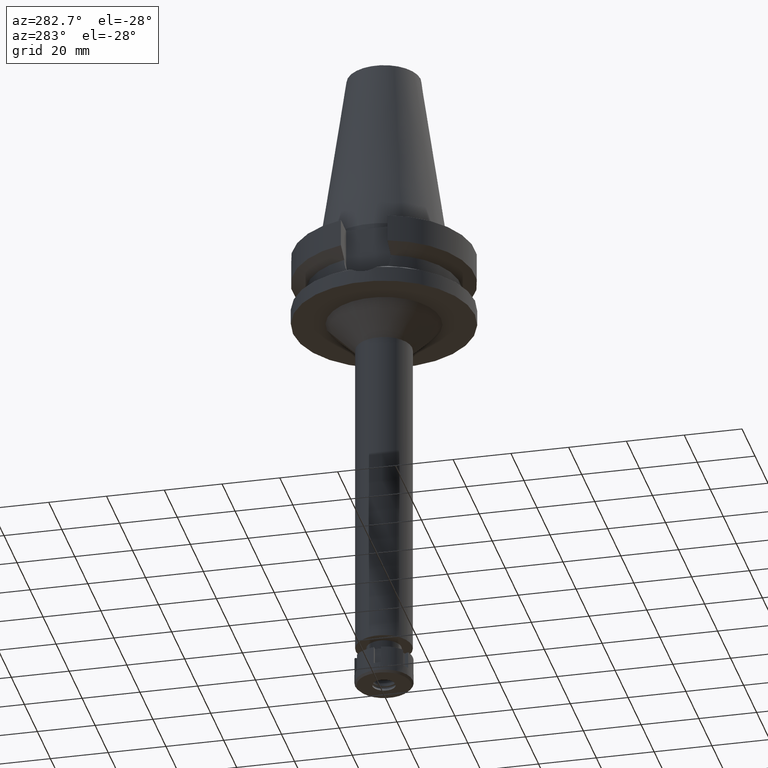
[diagram: clean part render]
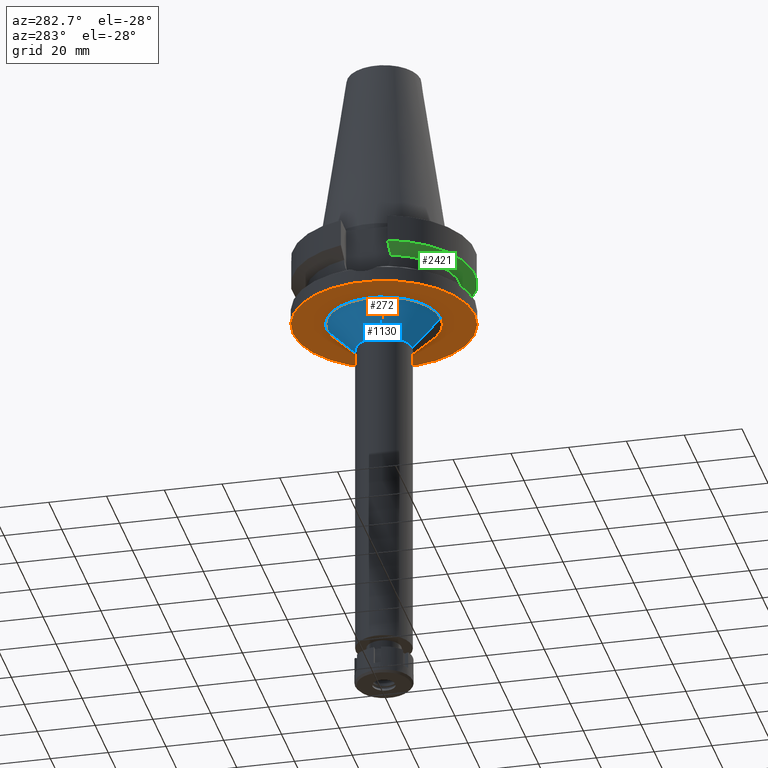
[diagram: same view with three faces highlighted in distinct colors, each labeled with its STEP entity id]
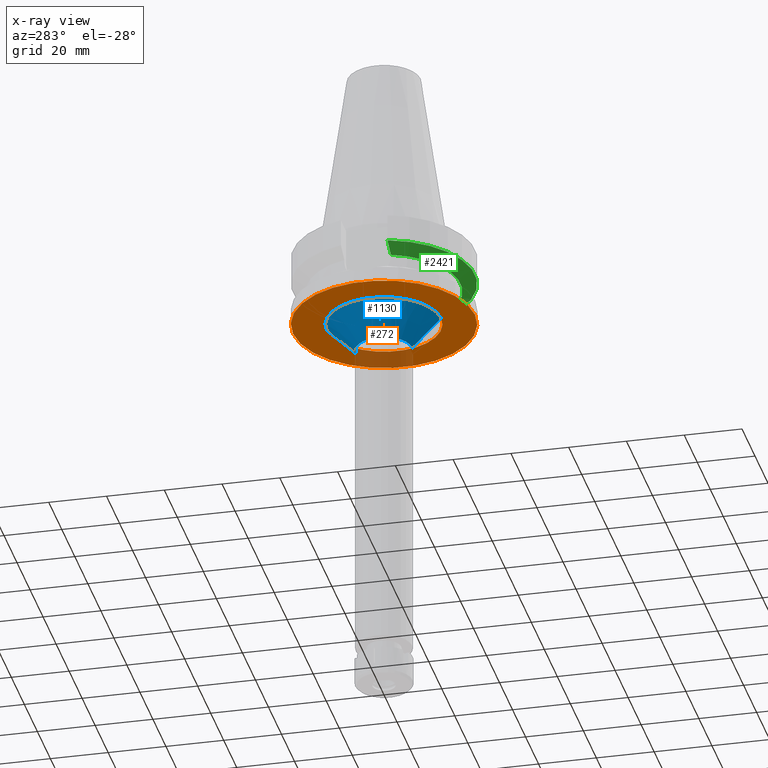
[diagram: x-ray of the same camera — body ghosted, the three highlighted faces saturated]
A machine part, auxiliary view with three faces highlighted in distinct colors.
The next image is the same camera in x-ray (body ghosted, the three faces saturated) — at least one of them is partly hidden behind the body in this view.
Their STEP definitions:

[orange] entity #272 — the highlighted planar face has unit normal (0, 0, -1).
#47 = DIRECTION ( 'NONE',  ( 0.0000000000000000000, 0.0000000000000000000, -1.000000000000000000 ) ) ;
#118 = CIRCLE ( 'NONE', #2706, 19.75000000000000000 ) ;
#255 = FACE_OUTER_BOUND ( 'NONE', #1610, .T. ) ;
#258 = CARTESIAN_POINT ( 'NONE',  ( 0.0000000000000000000, 0.0000000000000000000, -27.00000000000000000 ) ) ;
#272 = ADVANCED_FACE ( 'NONE', ( #255, #2242 ), #1097, .T. ) ;
#285 = ORIENTED_EDGE ( 'NONE', *, *, #2653, .F. ) ;
#293 = AXIS2_PLACEMENT_3D ( 'NONE', #521, #1375, #2842 ) ;
#336 = CARTESIAN_POINT ( 'NONE',  ( 0.0000000000000000000, 2.163583500053999606E-14, -27.00000000000000000 ) ) ;
#356 = VERTEX_POINT ( 'NONE', #3419 ) ;
#410 = AXIS2_PLACEMENT_3D ( 'NONE', #2341, #3465, #2101 ) ;
#521 = CARTESIAN_POINT ( 'NONE',  ( 0.0000000000000000000, 0.0000000000000000000, -27.00000000000000000 ) ) ;
#699 = EDGE_LOOP ( 'NONE', ( #285, #3612 ) ) ;
#718 = CARTESIAN_POINT ( 'NONE',  ( 0.0000000000000000000, -19.75000000000000000, -27.00000000000000000 ) ) ;
#792 = VERTEX_POINT ( 'NONE', #3442 ) ;
#944 = EDGE_CURVE ( 'NONE', #356, #792, #2880, .T. ) ;
#1085 = EDGE_CURVE ( 'NONE', #2205, #1089, #118, .T. ) ;
#1089 = VERTEX_POINT ( 'NONE', #2807 ) ;
#1097 = PLANE ( 'NONE',  #293 ) ;
#1127 = CARTESIAN_POINT ( 'NONE',  ( 0.0000000000000000000, 0.0000000000000000000, -27.00000000000000000 ) ) ;
#1173 = DIRECTION ( 'NONE',  ( 0.0000000000000000000, 0.0000000000000000000, 1.000000000000000000 ) ) ;
#1375 = DIRECTION ( 'NONE',  ( 0.0000000000000000000, 0.0000000000000000000, -1.000000000000000000 ) ) ;
#1610 = EDGE_LOOP ( 'NONE', ( #3085, #2800 ) ) ;
#1652 = CIRCLE ( 'NONE', #3347, 19.75000000000000000 ) ;
#1820 = AXIS2_PLACEMENT_3D ( 'NONE', #336, #1173, #3148 ) ;
#2101 = DIRECTION ( 'NONE',  ( 0.0000000000000000000, 1.000000000000000000, 0.0000000000000000000 ) ) ;
#2146 = EDGE_CURVE ( 'NONE', #792, #356, #3339, .T. ) ;
#2205 = VERTEX_POINT ( 'NONE', #718 ) ;
#2240 = DIRECTION ( 'NONE',  ( 0.0000000000000000000, 1.000000000000000000, 0.0000000000000000000 ) ) ;
#2242 = FACE_BOUND ( 'NONE', #699, .T. ) ;
#2341 = CARTESIAN_POINT ( 'NONE',  ( 0.0000000000000000000, 2.163583500053999606E-14, -27.00000000000000000 ) ) ;
#2653 = EDGE_CURVE ( 'NONE', #1089, #2205, #1652, .T. ) ;
#2706 = AXIS2_PLACEMENT_3D ( 'NONE', #258, #2831, #3620 ) ;
#2800 = ORIENTED_EDGE ( 'NONE', *, *, #2146, .F. ) ;
#2807 = CARTESIAN_POINT ( 'NONE',  ( 0.0000000000000000000, 19.75000000000000000, -27.00000000000000000 ) ) ;
#2831 = DIRECTION ( 'NONE',  ( 0.0000000000000000000, 0.0000000000000000000, -1.000000000000000000 ) ) ;
#2842 = DIRECTION ( 'NONE',  ( 0.0000000000000000000, -1.000000000000000000, 0.0000000000000000000 ) ) ;
#2880 = CIRCLE ( 'NONE', #410, 31.50000000000000000 ) ;
#3085 = ORIENTED_EDGE ( 'NONE', *, *, #944, .F. ) ;
#3148 = DIRECTION ( 'NONE',  ( 0.0000000000000000000, -1.000000000000000000, 0.0000000000000000000 ) ) ;
#3339 = CIRCLE ( 'NONE', #1820, 31.50000000000000000 ) ;
#3347 = AXIS2_PLACEMENT_3D ( 'NONE', #1127, #47, #2240 ) ;
#3419 = CARTESIAN_POINT ( 'NONE',  ( 0.0000000000000000000, 31.50000000000000000, -27.00000000000000000 ) ) ;
#3442 = CARTESIAN_POINT ( 'NONE',  ( 0.0000000000000000000, -31.50000000000000000, -27.00000000000000000 ) ) ;
#3465 = DIRECTION ( 'NONE',  ( 0.0000000000000000000, 0.0000000000000000000, 1.000000000000000000 ) ) ;
#3612 = ORIENTED_EDGE ( 'NONE', *, *, #1085, .F. ) ;
#3620 = DIRECTION ( 'NONE',  ( 0.0000000000000000000, -1.000000000000000000, 0.0000000000000000000 ) ) ;

[blue] entity #1130 — the highlighted conical surface has half-angle 45 deg.
#118 = CIRCLE ( 'NONE', #2706, 19.75000000000000000 ) ;
#258 = CARTESIAN_POINT ( 'NONE',  ( 0.0000000000000000000, 0.0000000000000000000, -27.00000000000000000 ) ) ;
#425 = ORIENTED_EDGE ( 'NONE', *, *, #3214, .F. ) ;
#504 = DIRECTION ( 'NONE',  ( 0.0000000000000000000, 1.000000000000000000, 0.0000000000000000000 ) ) ;
#520 = EDGE_LOOP ( 'NONE', ( #425, #1325, #1716, #3273 ) ) ;
#554 = CARTESIAN_POINT ( 'NONE',  ( 0.0000000000000000000, -19.75000000000000000, -27.00000000000000000 ) ) ;
#683 = DIRECTION ( 'NONE',  ( 0.0000000000000000000, 0.0000000000000000000, -1.000000000000000000 ) ) ;
#718 = CARTESIAN_POINT ( 'NONE',  ( 0.0000000000000000000, -19.75000000000000000, -27.00000000000000000 ) ) ;
#954 = CARTESIAN_POINT ( 'NONE',  ( 0.0000000000000000000, 0.0000000000000000000, -37.00000000000000000 ) ) ;
#1015 = LINE ( 'NONE', #554, #2416 ) ;
#1085 = EDGE_CURVE ( 'NONE', #2205, #1089, #118, .T. ) ;
#1089 = VERTEX_POINT ( 'NONE', #2807 ) ;
#1129 = DIRECTION ( 'NONE',  ( 0.0000000000000000000, 0.0000000000000000000, 1.000000000000000000 ) ) ;
#1130 = ADVANCED_FACE ( 'NONE', ( #2532 ), #1163, .T. ) ;
#1163 = CONICAL_SURFACE ( 'NONE', #1463, 14.75000000000000000, 0.7853981633972997312 ) ;
#1219 = VERTEX_POINT ( 'NONE', #1484 ) ;
#1325 = ORIENTED_EDGE ( 'NONE', *, *, #1376, .F. ) ;
#1376 = EDGE_CURVE ( 'NONE', #2205, #1799, #1015, .T. ) ;
#1463 = AXIS2_PLACEMENT_3D ( 'NONE', #2177, #1129, #504 ) ;
#1484 = CARTESIAN_POINT ( 'NONE',  ( 0.0000000000000000000, 9.750000000000000000, -37.00000000000000000 ) ) ;
#1564 = CARTESIAN_POINT ( 'NONE',  ( 0.0000000000000000000, 19.75000000000000000, -27.00000000000000000 ) ) ;
#1716 = ORIENTED_EDGE ( 'NONE', *, *, #1085, .T. ) ;
#1799 = VERTEX_POINT ( 'NONE', #2159 ) ;
#1916 = CIRCLE ( 'NONE', #2503, 9.750000000000000000 ) ;
#2159 = CARTESIAN_POINT ( 'NONE',  ( 0.0000000000000000000, -9.750000000000000000, -37.00000000000000000 ) ) ;
#2177 = CARTESIAN_POINT ( 'NONE',  ( 0.0000000000000000000, 0.0000000000000000000, -32.00000000000000000 ) ) ;
#2205 = VERTEX_POINT ( 'NONE', #718 ) ;
#2391 = LINE ( 'NONE', #1564, #2647 ) ;
#2416 = VECTOR ( 'NONE', #3372, 1000.000000000000114 ) ;
#2503 = AXIS2_PLACEMENT_3D ( 'NONE', #954, #683, #2903 ) ;
#2532 = FACE_OUTER_BOUND ( 'NONE', #520, .T. ) ;
#2647 = VECTOR ( 'NONE', #2669, 1000.000000000000114 ) ;
#2669 = DIRECTION ( 'NONE',  ( 0.0000000000000000000, -0.7071067811865474617, -0.7071067811865474617 ) ) ;
#2706 = AXIS2_PLACEMENT_3D ( 'NONE', #258, #2831, #3620 ) ;
#2754 = EDGE_CURVE ( 'NONE', #1089, #1219, #2391, .T. ) ;
#2807 = CARTESIAN_POINT ( 'NONE',  ( 0.0000000000000000000, 19.75000000000000000, -27.00000000000000000 ) ) ;
#2831 = DIRECTION ( 'NONE',  ( 0.0000000000000000000, 0.0000000000000000000, -1.000000000000000000 ) ) ;
#2903 = DIRECTION ( 'NONE',  ( 0.0000000000000000000, -1.000000000000000000, 0.0000000000000000000 ) ) ;
#3214 = EDGE_CURVE ( 'NONE', #1799, #1219, #1916, .T. ) ;
#3273 = ORIENTED_EDGE ( 'NONE', *, *, #2754, .T. ) ;
#3372 = DIRECTION ( 'NONE',  ( 0.0000000000000000000, 0.7071067811865474617, -0.7071067811865474617 ) ) ;
#3620 = DIRECTION ( 'NONE',  ( 0.0000000000000000000, -1.000000000000000000, 0.0000000000000000000 ) ) ;

[green] entity #2421 — the highlighted conical surface has half-angle 60 deg.
#11 = DIRECTION ( 'NONE',  ( 0.9527442516822307583, -0.3037735849057093818, 0.0000000000000000000 ) ) ;
#44 = VERTEX_POINT ( 'NONE', #2218 ) ;
#179 = CIRCLE ( 'NONE', #1104, 26.50000000000000711 ) ;
#230 = DIRECTION ( 'NONE',  ( 0.0000000000000000000, 1.000000000000000000, 0.0000000000000000000 ) ) ;
#484 = VERTEX_POINT ( 'NONE', #1211 ) ;
#561 = VERTEX_POINT ( 'NONE', #766 ) ;
#570 = CARTESIAN_POINT ( 'NONE',  ( 28.57294951894145285, -8.050008280307146435, -12.61547990224312521 ) ) ;
#766 = CARTESIAN_POINT ( 'NONE',  ( 30.45402272279000044, -8.049999999999000622, -11.56550565266999975 ) ) ;
#868 = CARTESIAN_POINT ( 'NONE',  ( -28.57292329137948528, -8.049998557331793592, -12.61549605472040270 ) ) ;
#883 = CARTESIAN_POINT ( 'NONE',  ( -26.83754616083559341, -8.049990821977567990, -13.57774888054535722 ) ) ;
#995 = EDGE_CURVE ( 'NONE', #44, #484, #1817, .T. ) ;
#1044 = AXIS2_PLACEMENT_3D ( 'NONE', #2488, #2174, #2501 ) ;
#1093 = FACE_OUTER_BOUND ( 'NONE', #1187, .T. ) ;
#1103 = CARTESIAN_POINT ( 'NONE',  ( 30.45402272279000044, -8.049999999999000622, -11.56550565266999975 ) ) ;
#1104 = AXIS2_PLACEMENT_3D ( 'NONE', #3363, #1414, #11 ) ;
#1187 = EDGE_LOOP ( 'NONE', ( #3630, #2974, #2517, #1443 ) ) ;
#1211 = CARTESIAN_POINT ( 'NONE',  ( -25.24772413111999825, -8.049995416064998466, -14.45229202584999939 ) ) ;
#1361 = EDGE_CURVE ( 'NONE', #2962, #561, #1934, .T. ) ;
#1414 = DIRECTION ( 'NONE',  ( 0.0000000000000000000, 0.0000000000000000000, -1.000000000000000000 ) ) ;
#1443 = ORIENTED_EDGE ( 'NONE', *, *, #2406, .F. ) ;
#1521 = CONICAL_SURFACE ( 'NONE', #2756, 29.00000000000000000, 1.047197551196400456 ) ;
#1609 = DIRECTION ( 'NONE',  ( 0.0000000000000000000, 0.0000000000000000000, 1.000000000000000000 ) ) ;
#1705 = CARTESIAN_POINT ( 'NONE',  ( 26.83757730459284119, -8.050003177712282465, -13.57772965054501491 ) ) ;
#1817 = B_SPLINE_CURVE_WITH_KNOTS ( 'NONE', 3,
 ( #2272, #868, #883, #2538 ),
 .UNSPECIFIED., .F., .F.,
 ( 4, 4 ),
 ( 0.0000000000000000000, 1.000000000000000000 ),
 .UNSPECIFIED. ) ;
#1924 = CARTESIAN_POINT ( 'NONE',  ( 25.24772266958000344, -8.050000000000000711, -14.45225699861000024 ) ) ;
#1934 = B_SPLINE_CURVE_WITH_KNOTS ( 'NONE', 3,
 ( #3638, #1705, #570, #1103 ),
 .UNSPECIFIED., .F., .F.,
 ( 4, 4 ),
 ( 0.0000000000000000000, 1.000000000000000000 ),
 .UNSPECIFIED. ) ;
#2174 = DIRECTION ( 'NONE',  ( 0.0000000000000000000, 0.0000000000000000000, 1.000000000000000000 ) ) ;
#2218 = CARTESIAN_POINT ( 'NONE',  ( -30.45402291358000113, -8.049999278195999253, -11.56551215380000031 ) ) ;
#2272 = CARTESIAN_POINT ( 'NONE',  ( -30.45402291358000113, -8.049999278195999253, -11.56551215380000031 ) ) ;
#2406 = EDGE_CURVE ( 'NONE', #44, #561, #2873, .T. ) ;
#2421 = ADVANCED_FACE ( 'NONE', ( #1093 ), #1521, .T. ) ;
#2488 = CARTESIAN_POINT ( 'NONE',  ( 0.0000000000000000000, 1.065333950388000029E-14, -11.56550565266999975 ) ) ;
#2501 = DIRECTION ( 'NONE',  ( 0.0000000000000000000, -1.000000000000000000, 0.0000000000000000000 ) ) ;
#2517 = ORIENTED_EDGE ( 'NONE', *, *, #1361, .T. ) ;
#2538 = CARTESIAN_POINT ( 'NONE',  ( -25.24772413111999825, -8.049995416064998466, -14.45229202584999939 ) ) ;
#2676 = EDGE_CURVE ( 'NONE', #2962, #484, #179, .T. ) ;
#2756 = AXIS2_PLACEMENT_3D ( 'NONE', #3309, #1609, #230 ) ;
#2873 = CIRCLE ( 'NONE', #1044, 31.50000000000000000 ) ;
#2962 = VERTEX_POINT ( 'NONE', #1924 ) ;
#2974 = ORIENTED_EDGE ( 'NONE', *, *, #2676, .F. ) ;
#3309 = CARTESIAN_POINT ( 'NONE',  ( 0.0000000000000000000, 1.065333950388000029E-14, -13.00888132564000088 ) ) ;
#3363 = CARTESIAN_POINT ( 'NONE',  ( 0.0000000000000000000, 1.065333950388000029E-14, -14.45225699861000024 ) ) ;
#3630 = ORIENTED_EDGE ( 'NONE', *, *, #995, .T. ) ;
#3638 = CARTESIAN_POINT ( 'NONE',  ( 25.24772266958000344, -8.050000000000000711, -14.45225699861000024 ) ) ;